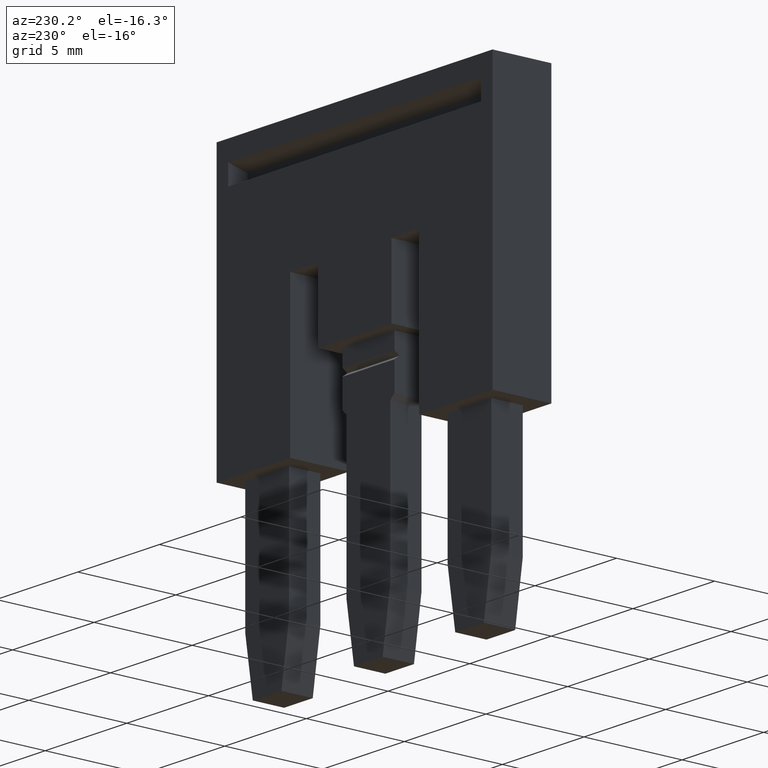
[diagram: clean part render]
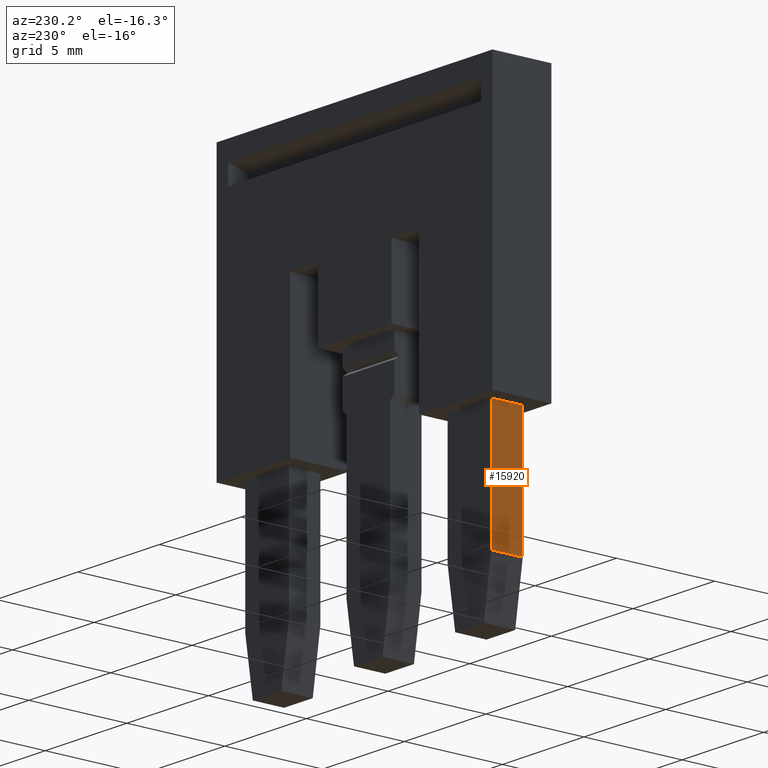
[diagram: same view with one face highlighted and labeled with its STEP entity id]
A machine part, auxiliary view. The second image highlights one B-rep face of the part: STEP entity #15920.
In plain terms, the highlighted planar face has unit normal (-1, 0, 0).
Its self-contained STEP definition (entity closure, byte-faithful):
#4270=CARTESIAN_POINT('',(4.90716722169511,-23.0750000000004,
59.7999999999964));
#4280=VERTEX_POINT('',#4270);
#4330=CARTESIAN_POINT('',(5.60716722168535,-23.0750000000004,
59.7999999999964));
#4340=DIRECTION('',(-1.,0.,-1.22464679914735E-16));
#4350=VECTOR('',#4340,1.);
#4360=LINE('',#4330,#4350);
#4370=CARTESIAN_POINT('',(3.30716722169511,-23.0750000000004,
59.7999999999964));
#4380=VERTEX_POINT('',#4370);
#4390=EDGE_CURVE('',#4280,#4380,#4360,.T.);
#10020=CARTESIAN_POINT('',(4.90716722169511,-29.2807420565132,
59.7999999999964));
#10030=VERTEX_POINT('',#10020);
#10060=CARTESIAN_POINT('',(4.90716722169511,-12.305124,59.7999999999964)
);
#10070=DIRECTION('',(0.,-1.,6.12323399573677E-17));
#10080=VECTOR('',#10070,1.);
#10090=LINE('',#10060,#10080);
#10100=EDGE_CURVE('',#4280,#10030,#10090,.T.);
#13680=CARTESIAN_POINT('',(3.30716722169511,-29.2807420565132,
59.7999999999964));
#13690=VERTEX_POINT('',#13680);
#13720=CARTESIAN_POINT('',(5.60716722168535,-29.2807420565132,
59.7999999999964));
#13730=DIRECTION('',(-1.,4.55169768507567E-15,-1.22464679914736E-16));
#13740=VECTOR('',#13730,1.);
#13750=LINE('',#13720,#13740);
#13760=EDGE_CURVE('',#10030,#13690,#13750,.T.);
#15620=CARTESIAN_POINT('',(3.30716722169511,-12.305124,59.7999999999964)
);
#15630=DIRECTION('',(-1.23259516440783E-32,-1.,6.12323399573677E-17));
#15640=VECTOR('',#15630,1.);
#15650=LINE('',#15620,#15640);
#15660=EDGE_CURVE('',#4380,#13690,#15650,.T.);
#15810=CARTESIAN_POINT('',(4.90716722169509,-21.7849999999984,
59.7999999999964));
#15820=DIRECTION('',(-1.22464679914735E-16,6.12323399573677E-17,1.));
#15830=DIRECTION('',(-7.49879891330929E-33,-1.,6.12323399573677E-17));
#15840=AXIS2_PLACEMENT_3D('',#15810,#15820,#15830);
#15850=PLANE('',#15840);
#15860=ORIENTED_EDGE('',*,*,#15660,.T.);
#15870=ORIENTED_EDGE('',*,*,#4390,.T.);
#15880=ORIENTED_EDGE('',*,*,#10100,.F.);
#15890=ORIENTED_EDGE('',*,*,#13760,.F.);
#15900=EDGE_LOOP('',(#15890,#15880,#15870,#15860));
#15910=FACE_OUTER_BOUND('',#15900,.T.);
#15920=ADVANCED_FACE('',(#15910),#15850,.T.);